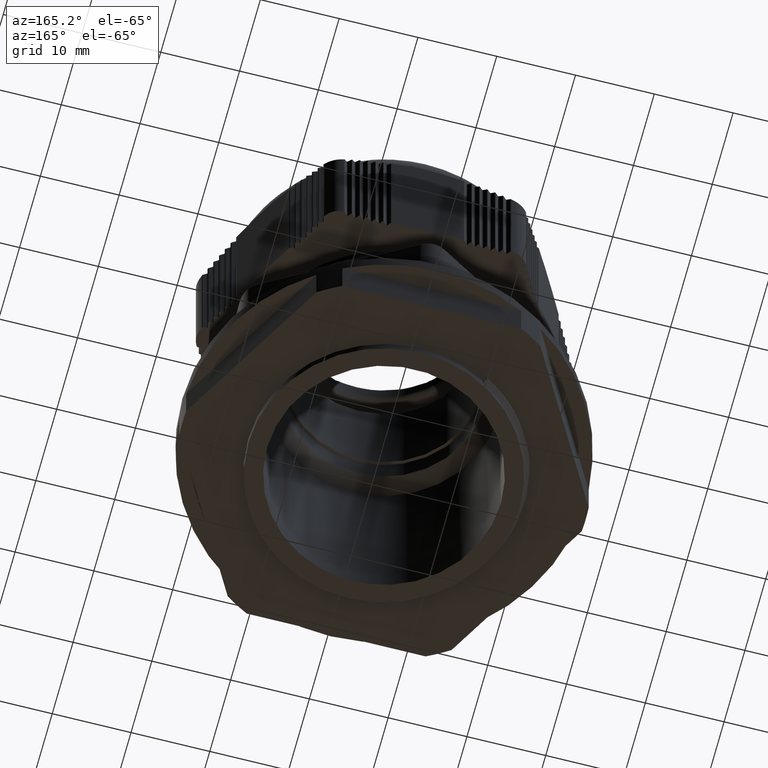
[diagram: clean part render]
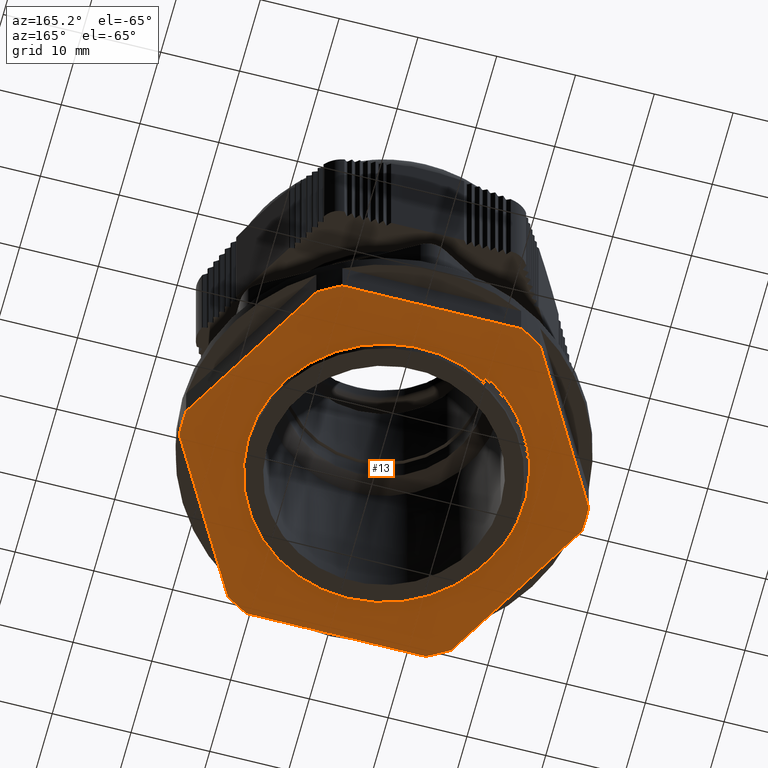
[diagram: same view with one face highlighted and labeled with its STEP entity id]
A machine part, auxiliary view. The second image highlights one B-rep face of the part: STEP entity #13.
In plain terms, the highlighted planar face has unit normal (0, 0, -1).
Its self-contained STEP definition (entity closure, byte-faithful):
#13 = ADVANCED_FACE ( 'NONE', ( #3961, #3947 ), #3967, .T. ) ;
#753 = EDGE_CURVE ( 'NONE', #21029, #20965, #22825, .T. ) ;
#1261 = EDGE_CURVE ( 'NONE', #1626, #1661, #10106, .T. ) ;
#1263 = EDGE_CURVE ( 'NONE', #1711, #1648, #23046, .T. ) ;
#1279 = EDGE_CURVE ( 'NONE', #1661, #1684, #16288, .T. ) ;
#1286 = EDGE_CURVE ( 'NONE', #1575, #1690, #10574, .T. ) ;
#1290 = EDGE_CURVE ( 'NONE', #1759, #1711, #10287, .T. ) ;
#1293 = EDGE_CURVE ( 'NONE', #1684, #1628, #10285, .T. ) ;
#1298 = EDGE_CURVE ( 'NONE', #1738, #1594, #10248, .T. ) ;
#1299 = EDGE_CURVE ( 'NONE', #1594, #1759, #10581, .T. ) ;
#1301 = EDGE_CURVE ( 'NONE', #1621, #1640, #10260, .T. ) ;
#1311 = EDGE_CURVE ( 'NONE', #1690, #1636, #10333, .T. ) ;
#1313 = EDGE_CURVE ( 'NONE', #1636, #1738, #10583, .T. ) ;
#1321 = EDGE_CURVE ( 'NONE', #1648, #1621, #10544, .T. ) ;
#1335 = EDGE_CURVE ( 'NONE', #1640, #1626, #10651, .T. ) ;
#1343 = EDGE_CURVE ( 'NONE', #1628, #1575, #10657, .T. ) ;
#1575 = VERTEX_POINT ( 'NONE', #11569 ) ;
#1594 = VERTEX_POINT ( 'NONE', #11598 ) ;
#1621 = VERTEX_POINT ( 'NONE', #11609 ) ;
#1626 = VERTEX_POINT ( 'NONE', #11645 ) ;
#1628 = VERTEX_POINT ( 'NONE', #11631 ) ;
#1636 = VERTEX_POINT ( 'NONE', #11665 ) ;
#1640 = VERTEX_POINT ( 'NONE', #11649 ) ;
#1648 = VERTEX_POINT ( 'NONE', #11706 ) ;
#1661 = VERTEX_POINT ( 'NONE', #11683 ) ;
#1684 = VERTEX_POINT ( 'NONE', #11773 ) ;
#1690 = VERTEX_POINT ( 'NONE', #11769 ) ;
#1711 = VERTEX_POINT ( 'NONE', #11792 ) ;
#1738 = VERTEX_POINT ( 'NONE', #11843 ) ;
#1759 = VERTEX_POINT ( 'NONE', #11900 ) ;
#1872 = EDGE_CURVE ( 'NONE', #22206, #22204, #5571, .T. ) ;
#1888 = EDGE_CURVE ( 'NONE', #21029, #22206, #12313, .T. ) ;
#1892 = EDGE_CURVE ( 'NONE', #20965, #22216, #11014, .T. ) ;
#1966 = EDGE_CURVE ( 'NONE', #22204, #22216, #5533, .T. ) ;
#3255 = EDGE_LOOP ( 'NONE', ( #23261, #23317, #23275, #23328, #23327 ) ) ;
#3260 = EDGE_LOOP ( 'NONE', ( #23342, #23338, #23358, #23299, #23297, #23373, #23325, #23347, #23366, #23370, #23329, #23321, #23305, #23359 ) ) ;
#3947 = FACE_OUTER_BOUND ( 'NONE', #3260, .T. ) ;
#3958 = DIRECTION ( 'NONE',  ( -1.000000000000000000, 0.0000000000000000000, -0.0000000000000000000 ) ) ;
#3961 = FACE_BOUND ( 'NONE', #3255, .T. ) ;
#3967 = PLANE ( 'NONE',  #22876 ) ;
#3968 = DIRECTION ( 'NONE',  ( 0.0000000000000000000, 0.0000000000000000000, -1.000000000000000000 ) ) ;
#3983 = CARTESIAN_POINT ( 'NONE',  ( -671.2819160884045000, 330.9994562443066000, 1.595886070432598100 ) ) ;
#5533 = B_SPLINE_CURVE_WITH_KNOTS ( 'NONE', 3,
 ( #12673, #12635, #12637, #12648, #12652, #12645, #12646, #12675, #12639, #12633, #12632, #12656, #12657, #12626, #12627, #12644, #12658, #12664, #12629, #12665, #12659, #12666, #12667, #12660, #12670, #12671, #12638, #12672, #12631, #12634, #12640, #12641, #12698, #12713, #12712, #12725, #12705, #12700, #12703, #12694, #12684, #12701, #12709, #12680 ),
 .UNSPECIFIED., .F., .F.,
 ( 4, 2, 2, 2, 2, 2, 2, 2, 2, 2, 2, 2, 2, 2, 2, 2, 2, 2, 2, 2, 2, 4 ),
 ( 0.0000000000000000000, 0.001216997913285871900, 0.002433995826571743800, 0.004867991653143654100, 0.007301987479715563500, 0.008518985393001546000, 0.009735983306287528500, 0.01216997913285975400, 0.01338697704614579000, 0.01460397495943182600, 0.01947196661257615700, 0.02068896452586205900, 0.02190596243914795900, 0.02433995826571957300, 0.02555695617900523000, 0.02677395409229088200, 0.02920794991886256600, 0.03164194574543425400, 0.03285894365872025400, 0.03407594157200626700, 0.03650993739857794100, 0.03894393322514962100 ),
 .UNSPECIFIED. ) ;
#5571 = B_SPLINE_CURVE_WITH_KNOTS ( 'NONE', 3,
 ( #12223, #12216, #12219, #12211, #12200, #12208, #12195, #12206, #12225, #12239, #12236, #12238, #12198, #12227 ),
 .UNSPECIFIED., .F., .F.,
 ( 4, 2, 2, 2, 2, 2, 4 ),
 ( 1.241267076623636600E-016, 0.003547606071713650700, 0.005321409107570595700, 0.007095212143427539900, 0.008869015179284484000, 0.01064281821514143100, 0.01419042428685561200 ),
 .UNSPECIFIED. ) ;
#8437 = DIRECTION ( 'NONE',  ( 0.0000000000000000000, 0.0000000000000000000, -1.000000000000000000 ) ) ;
#8452 = CARTESIAN_POINT ( 'NONE',  ( -671.2819160884045000, 330.9994562443066000, 1.595886070432598100 ) ) ;
#8480 = DIRECTION ( 'NONE',  ( -1.000000000000000000, 0.0000000000000000000, 0.0000000000000000000 ) ) ;
#10106 = LINE ( 'NONE', #10108, #23032 ) ;
#10108 = CARTESIAN_POINT ( 'NONE',  ( -671.2819160884045000, 353.9494562443066500, 1.595886070432598100 ) ) ;
#10151 = DIRECTION ( 'NONE',  ( -1.000000000000000000, 0.0000000000000000000, 0.0000000000000000000 ) ) ;
#10175 = DIRECTION ( 'NONE',  ( 0.0000000000000000000, 0.0000000000000000000, -1.000000000000000000 ) ) ;
#10184 = CARTESIAN_POINT ( 'NONE',  ( -671.2819160884045000, 330.9994562443066000, 1.595886070432598100 ) ) ;
#10185 = DIRECTION ( 'NONE',  ( 1.000000000000000000, -0.0000000000000000000, 0.0000000000000000000 ) ) ;
#10208 = DIRECTION ( 'NONE',  ( 0.0000000000000000000, 0.0000000000000000000, -1.000000000000000000 ) ) ;
#10209 = CARTESIAN_POINT ( 'NONE',  ( -671.2819160884045000, 330.9994562443066000, 1.595886070432598100 ) ) ;
#10210 = DIRECTION ( 'NONE',  ( 0.0000000000000000000, 0.0000000000000000000, -1.000000000000000000 ) ) ;
#10211 = DIRECTION ( 'NONE',  ( -1.000000000000000000, 0.0000000000000000000, 0.0000000000000000000 ) ) ;
#10232 = CARTESIAN_POINT ( 'NONE',  ( -671.2819160884045000, 330.9994562443066000, 1.595886070432598100 ) ) ;
#10233 = DIRECTION ( 'NONE',  ( -1.000000000000000000, 0.0000000000000000000, 0.0000000000000000000 ) ) ;
#10246 = DIRECTION ( 'NONE',  ( -0.4999999999999997800, 0.8660254037844387100, 0.0000000000000000000 ) ) ;
#10248 = LINE ( 'NONE', #10259, #10589 ) ;
#10251 = DIRECTION ( 'NONE',  ( -1.000000000000000000, 0.0000000000000000000, -0.0000000000000000000 ) ) ;
#10252 = CARTESIAN_POINT ( 'NONE',  ( -686.1999443206003700, 310.9382390912172100, 1.595886070432598100 ) ) ;
#10257 = CARTESIAN_POINT ( 'NONE',  ( -671.2819160884045000, 330.9994562443066000, 1.595886070432598100 ) ) ;
#10258 = DIRECTION ( 'NONE',  ( -1.000000000000000000, 0.0000000000000000000, 0.0000000000000000000 ) ) ;
#10259 = CARTESIAN_POINT ( 'NONE',  ( -671.2819160884045000, 308.0494562443065500, 1.595886070432598100 ) ) ;
#10260 = LINE ( 'NONE', #10330, #10573 ) ;
#10261 = DIRECTION ( 'NONE',  ( 0.5000000000000026600, -0.8660254037844371500, 0.0000000000000000000 ) ) ;
#10266 = DIRECTION ( 'NONE',  ( 0.0000000000000000000, 0.0000000000000000000, -1.000000000000000000 ) ) ;
#10272 = CARTESIAN_POINT ( 'NONE',  ( -656.3638878562090900, 351.0606733973963300, 1.595886070432598100 ) ) ;
#10285 = LINE ( 'NONE', #10272, #10567 ) ;
#10287 = LINE ( 'NONE', #10252, #10543 ) ;
#10298 = CARTESIAN_POINT ( 'NONE',  ( -671.2819160884045000, 330.9994562443066000, 1.595886070432598100 ) ) ;
#10300 = DIRECTION ( 'NONE',  ( 0.0000000000000000000, 0.0000000000000000000, -1.000000000000000000 ) ) ;
#10303 = DIRECTION ( 'NONE',  ( -1.000000000000000000, 0.0000000000000000000, 0.0000000000000000000 ) ) ;
#10326 = CARTESIAN_POINT ( 'NONE',  ( -646.4493782868952400, 328.1106733973955400, 1.595886070432598100 ) ) ;
#10329 = DIRECTION ( 'NONE',  ( 0.4999999999999982200, 0.8660254037844396000, 0.0000000000000000000 ) ) ;
#10330 = CARTESIAN_POINT ( 'NONE',  ( -696.1144538899138800, 333.8882390912176600, 1.595886070432598100 ) ) ;
#10332 = DIRECTION ( 'NONE',  ( -0.4999999999999941700, -0.8660254037844421500, 0.0000000000000000000 ) ) ;
#10333 = LINE ( 'NONE', #10326, #10576 ) ;
#10371 = CARTESIAN_POINT ( 'NONE',  ( -671.2819160884045000, 330.9994562443066000, 1.595886070432598100 ) ) ;
#10372 = DIRECTION ( 'NONE',  ( 0.0000000000000000000, 0.0000000000000000000, -1.000000000000000000 ) ) ;
#10373 = DIRECTION ( 'NONE',  ( -1.000000000000000000, 0.0000000000000000000, 0.0000000000000000000 ) ) ;
#10410 = CARTESIAN_POINT ( 'NONE',  ( -671.2819160884045000, 330.9994562443066000, 1.595886070432598100 ) ) ;
#10411 = DIRECTION ( 'NONE',  ( 0.0000000000000000000, 0.0000000000000000000, -1.000000000000000000 ) ) ;
#10438 = DIRECTION ( 'NONE',  ( 0.0000000000000000000, 0.0000000000000000000, -1.000000000000000000 ) ) ;
#10444 = DIRECTION ( 'NONE',  ( -1.000000000000000000, 0.0000000000000000000, 0.0000000000000000000 ) ) ;
#10462 = DIRECTION ( 'NONE',  ( -1.000000000000000000, 0.0000000000000000000, 0.0000000000000000000 ) ) ;
#10463 = CARTESIAN_POINT ( 'NONE',  ( -671.2819160884045000, 330.9994562443066000, 1.595886070432598100 ) ) ;
#10543 = VECTOR ( 'NONE', #10246, 1000.000000000000200 ) ;
#10544 = CIRCLE ( 'NONE', #10595, 25.60000000000006500 ) ;
#10547 = AXIS2_PLACEMENT_3D ( 'NONE', #10209, #10210, #10211 ) ;
#10567 = VECTOR ( 'NONE', #10261, 1000.000000000000100 ) ;
#10573 = VECTOR ( 'NONE', #10329, 1000.000000000000200 ) ;
#10574 = CIRCLE ( 'NONE', #10547, 25.60000000000006500 ) ;
#10576 = VECTOR ( 'NONE', #10332, 999.9999999999998900 ) ;
#10578 = AXIS2_PLACEMENT_3D ( 'NONE', #10298, #10300, #10303 ) ;
#10579 = AXIS2_PLACEMENT_3D ( 'NONE', #10257, #10266, #10258 ) ;
#10581 = CIRCLE ( 'NONE', #10579, 25.60000000000006500 ) ;
#10583 = CIRCLE ( 'NONE', #10578, 25.60000000000006500 ) ;
#10589 = VECTOR ( 'NONE', #10251, 1000.000000000000000 ) ;
#10595 = AXIS2_PLACEMENT_3D ( 'NONE', #10371, #10372, #10373 ) ;
#10632 = AXIS2_PLACEMENT_3D ( 'NONE', #10410, #10411, #10462 ) ;
#10651 = CIRCLE ( 'NONE', #10632, 25.60000000000006500 ) ;
#10657 = CIRCLE ( 'NONE', #10666, 25.60000000000006500 ) ;
#10666 = AXIS2_PLACEMENT_3D ( 'NONE', #10463, #10438, #10444 ) ;
#11014 = CIRCLE ( 'NONE', #11023, 17.23069359080486900 ) ;
#11023 = AXIS2_PLACEMENT_3D ( 'NONE', #12297, #12298, #12324 ) ;
#11025 = VECTOR ( 'NONE', #12318, 1000.000000000000100 ) ;
#11569 = CARTESIAN_POINT ( 'NONE',  ( -645.6819160884043600, 330.9994562443066000, 1.595886070432598100 ) ) ;
#11598 = CARTESIAN_POINT ( 'NONE',  ( -682.6246450369424100, 308.0494562443065500, 1.595886070432598100 ) ) ;
#11609 = CARTESIAN_POINT ( 'NONE',  ( -696.8285635795263000, 332.6513648266316600, 1.595886070432598100 ) ) ;
#11631 = CARTESIAN_POINT ( 'NONE',  ( -645.7352685972825800, 332.6513648266305300, 1.595886070432598100 ) ) ;
#11645 = CARTESIAN_POINT ( 'NONE',  ( -682.6246450369424100, 353.9494562443066500, 1.595886070432598100 ) ) ;
#11649 = CARTESIAN_POINT ( 'NONE',  ( -685.4858346309885100, 352.2975476619815800, 1.595886070432598100 ) ) ;
#11665 = CARTESIAN_POINT ( 'NONE',  ( -657.0779975458203800, 309.7013648266316200, 1.595886070432598100 ) ) ;
#11683 = CARTESIAN_POINT ( 'NONE',  ( -659.9391871398665900, 353.9494562443066500, 1.595886070432598100 ) ) ;
#11706 = CARTESIAN_POINT ( 'NONE',  ( -696.8819160884045200, 330.9994562443066000, 1.595886070432598100 ) ) ;
#11769 = CARTESIAN_POINT ( 'NONE',  ( -645.7352685972827000, 329.3475476619817600, 1.595886070432598100 ) ) ;
#11773 = CARTESIAN_POINT ( 'NONE',  ( -657.0779975458216300, 352.2975476619823200, 1.595886070432598100 ) ) ;
#11792 = CARTESIAN_POINT ( 'NONE',  ( -696.8285635795264200, 329.3475476619820500, 1.595886070432598100 ) ) ;
#11843 = CARTESIAN_POINT ( 'NONE',  ( -659.9391871398665900, 308.0494562443065500, 1.595886070432598100 ) ) ;
#11900 = CARTESIAN_POINT ( 'NONE',  ( -685.4858346309880500, 309.7013648266313300, 1.595886070432598100 ) ) ;
#12195 = CARTESIAN_POINT ( 'NONE',  ( -685.1780683553823800, 342.3537856106114500, 1.595886070432598100 ) ) ;
#12198 = CARTESIAN_POINT ( 'NONE',  ( -688.2850890605456000, 336.7046871818230900, 1.595886070432600300 ) ) ;
#12200 = CARTESIAN_POINT ( 'NONE',  ( -683.9933516761607300, 343.6679339469366100, 1.595886070432598600 ) ) ;
#12206 = CARTESIAN_POINT ( 'NONE',  ( -685.8929980145435400, 341.4124692244976100, 1.595886070432598100 ) ) ;
#12208 = CARTESIAN_POINT ( 'NONE',  ( -684.7976479841056500, 342.8053137984104500, 1.595886070432597700 ) ) ;
#12211 = CARTESIAN_POINT ( 'NONE',  ( -683.5680674178775000, 344.0802888321505300, 1.595886070432598300 ) ) ;
#12216 = CARTESIAN_POINT ( 'NONE',  ( -681.2705420946584800, 345.9351279122301400, 1.595886070432552800 ) ) ;
#12219 = CARTESIAN_POINT ( 'NONE',  ( -682.2370639351602200, 345.2465993072857500, 1.595886070432599000 ) ) ;
#12223 = CARTESIAN_POINT ( 'NONE',  ( -680.2429758879593500, 346.5204671067982100, 1.595886070432582800 ) ) ;
#12225 = CARTESIAN_POINT ( 'NONE',  ( -686.2254833707226000, 340.9254381953382400, 1.595886070432602800 ) ) ;
#12227 = CARTESIAN_POINT ( 'NONE',  ( -688.5687429171030100, 335.5563659217102100, 1.595886070432599400 ) ) ;
#12236 = CARTESIAN_POINT ( 'NONE',  ( -687.1236377723503200, 339.3979879328209700, 1.595886070435124500 ) ) ;
#12238 = CARTESIAN_POINT ( 'NONE',  ( -687.8861991426466600, 337.8077864110493400, 1.595886070435124100 ) ) ;
#12239 = CARTESIAN_POINT ( 'NONE',  ( -686.8406533539745200, 339.9187341688587500, 1.595886070432601900 ) ) ;
#12297 = CARTESIAN_POINT ( 'NONE',  ( -671.2819160884045000, 330.9994562443066000, 1.595886070432598100 ) ) ;
#12298 = DIRECTION ( 'NONE',  ( 0.0000000000000000000, 0.0000000000000000000, -1.000000000000000000 ) ) ;
#12313 = LINE ( 'NONE', #12327, #11025 ) ;
#12318 = DIRECTION ( 'NONE',  ( -0.5000000000009171600, 0.8660254037839091300, 0.0000000000000000000 ) ) ;
#12324 = DIRECTION ( 'NONE',  ( -1.000000000000000000, 0.0000000000000000000, 0.0000000000000000000 ) ) ;
#12327 = CARTESIAN_POINT ( 'NONE',  ( -679.8972628838064300, 345.9216746187695400, 1.595886070432598100 ) ) ;
#12626 = CARTESIAN_POINT ( 'NONE',  ( -688.0409000129317300, 325.2381986792763700, 1.595886070432599000 ) ) ;
#12627 = CARTESIAN_POINT ( 'NONE',  ( -687.7511194276145300, 324.4916175851475400, 1.595886070432595200 ) ) ;
#12629 = CARTESIAN_POINT ( 'NONE',  ( -686.4557705600860800, 321.9853289654099100, 1.595886070432599900 ) ) ;
#12631 = CARTESIAN_POINT ( 'NONE',  ( -678.3499170189810500, 315.0265716560337000, 1.595886070432598300 ) ) ;
#12632 = CARTESIAN_POINT ( 'NONE',  ( -688.6942094905210800, 327.5604384794183900, 1.595886070432597700 ) ) ;
#12633 = CARTESIAN_POINT ( 'NONE',  ( -688.7753165356283500, 327.9595783962731200, 1.595886070432599700 ) ) ;
#12634 = CARTESIAN_POINT ( 'NONE',  ( -677.5967977337452300, 314.7285885800168900, 1.595886070432598800 ) ) ;
#12635 = CARTESIAN_POINT ( 'NONE',  ( -688.6661488769704000, 335.1620355363069700, 1.595886070432599900 ) ) ;
#12637 = CARTESIAN_POINT ( 'NONE',  ( -688.7498758451458800, 334.7650499681763000, 1.595886070432598600 ) ) ;
#12638 = CARTESIAN_POINT ( 'NONE',  ( -679.8067894639730200, 315.7074320145803800, 1.595886070432595900 ) ) ;
#12639 = CARTESIAN_POINT ( 'NONE',  ( -688.9760068802361300, 329.1557803004906200, 1.595886070432598800 ) ) ;
#12640 = CARTESIAN_POINT ( 'NONE',  ( -677.2136786361538700, 314.5922140962561600, 1.595886070432598100 ) ) ;
#12641 = CARTESIAN_POINT ( 'NONE',  ( -676.0607695271196500, 314.2261052520984200, 1.595886070432598300 ) ) ;
#12644 = CARTESIAN_POINT ( 'NONE',  ( -687.2402869489219500, 323.4008298701778000, 1.595886070432594600 ) ) ;
#12645 = CARTESIAN_POINT ( 'NONE',  ( -689.0737236937832200, 332.3576451058506200, 1.595886070432598100 ) ) ;
#12646 = CARTESIAN_POINT ( 'NONE',  ( -689.1031848311961300, 331.5557014804794600, 1.595886070432598800 ) ) ;
#12648 = CARTESIAN_POINT ( 'NONE',  ( -688.8900621556757600, 333.9657860054610400, 1.595886070432598600 ) ) ;
#12652 = CARTESIAN_POINT ( 'NONE',  ( -688.9465336647836000, 333.5628359742531200, 1.595886070432598800 ) ) ;
#12656 = CARTESIAN_POINT ( 'NONE',  ( -688.5064291209329200, 326.7749064346639900, 1.595886070432597700 ) ) ;
#12657 = CARTESIAN_POINT ( 'NONE',  ( -688.3995780676079900, 326.3870897954487300, 1.595886070432598600 ) ) ;
#12658 = CARTESIAN_POINT ( 'NONE',  ( -687.0572731353524900, 323.0420975999760500, 1.595886070432597400 ) ) ;
#12659 = CARTESIAN_POINT ( 'NONE',  ( -684.3122945260382700, 319.0794095784277700, 1.595886070432598600 ) ) ;
#12660 = CARTESIAN_POINT ( 'NONE',  ( -681.8363874351869100, 316.9964959674080100, 1.595886070432597700 ) ) ;
#12664 = CARTESIAN_POINT ( 'NONE',  ( -686.6652072959962000, 322.3345763044102300, 1.595886070432597400 ) ) ;
#12665 = CARTESIAN_POINT ( 'NONE',  ( -685.3583844362724400, 320.2915301481110100, 1.595886070432599700 ) ) ;
#12666 = CARTESIAN_POINT ( 'NONE',  ( -682.7930542851829600, 317.7440980274274100, 1.595886070432598800 ) ) ;
#12667 = CARTESIAN_POINT ( 'NONE',  ( -682.4780861248777900, 317.4860874177076700, 1.595886070432597900 ) ) ;
#12670 = CARTESIAN_POINT ( 'NONE',  ( -681.5084862119284700, 316.7638272547886200, 1.595886070432597900 ) ) ;
#12671 = CARTESIAN_POINT ( 'NONE',  ( -680.5040203083785900, 316.1015256277585800, 1.595886070432597900 ) ) ;
#12672 = CARTESIAN_POINT ( 'NONE',  ( -678.7193519462705400, 315.1878154631560300, 1.595886070432595700 ) ) ;
#12673 = CARTESIAN_POINT ( 'NONE',  ( -688.5687429171030100, 335.5563659217102100, 1.595886070432599400 ) ) ;
#12675 = CARTESIAN_POINT ( 'NONE',  ( -689.0543257745030100, 329.9547690956170500, 1.595886070432598800 ) ) ;
#12680 = CARTESIAN_POINT ( 'NONE',  ( -665.0068787505465500, 314.9520044830862300, 1.595886070432597900 ) ) ;
#12684 = CARTESIAN_POINT ( 'NONE',  ( -668.0922935341108100, 313.9908676817855200, 1.595886070432597400 ) ) ;
#12694 = CARTESIAN_POINT ( 'NONE',  ( -668.8806098884882700, 313.8478864908403800, 1.595886070432598800 ) ) ;
#12698 = CARTESIAN_POINT ( 'NONE',  ( -675.2817517752527000, 314.0366843371696200, 1.595886070432598600 ) ) ;
#12700 = CARTESIAN_POINT ( 'NONE',  ( -670.4761473369660500, 313.6853834618896700, 1.595886070432598300 ) ) ;
#12701 = CARTESIAN_POINT ( 'NONE',  ( -666.5326541975752000, 314.3878070339656600, 1.595886070432597000 ) ) ;
#12703 = CARTESIAN_POINT ( 'NONE',  ( -670.0756825235610000, 313.7156879189707900, 1.595886070432598800 ) ) ;
#12705 = CARTESIAN_POINT ( 'NONE',  ( -671.2813596481072400, 313.6527430595485800, 1.595886070432599000 ) ) ;
#12709 = CARTESIAN_POINT ( 'NONE',  ( -665.7584740229946200, 314.6433189281016200, 1.595886070432597700 ) ) ;
#12712 = CARTESIAN_POINT ( 'NONE',  ( -672.9031465584029100, 313.6865308055574200, 1.595886070432599400 ) ) ;
#12713 = CARTESIAN_POINT ( 'NONE',  ( -673.7029187402973800, 313.7670102345203400, 1.595886070432598800 ) ) ;
#12725 = CARTESIAN_POINT ( 'NONE',  ( -671.6873632634092200, 313.6504530553984900, 1.595886070432598600 ) ) ;
#16288 = CIRCLE ( 'NONE', #23191, 25.60000000000006500 ) ;
#18636 = CARTESIAN_POINT ( 'NONE',  ( -654.0512224975996100, 330.9994562443066000, 1.595886070432598100 ) ) ;
#20171 = CARTESIAN_POINT ( 'NONE',  ( -679.8972628838063200, 345.9216746187696600, 1.595886070432598100 ) ) ;
#20375 = CARTESIAN_POINT ( 'NONE',  ( -665.0068787505465500, 314.9520044830862300, 1.595886070432597900 ) ) ;
#20412 = CARTESIAN_POINT ( 'NONE',  ( -680.2429758879593500, 346.5204671067982100, 1.595886070432582800 ) ) ;
#20418 = CARTESIAN_POINT ( 'NONE',  ( -688.5687429171030100, 335.5563659217102100, 1.595886070432599400 ) ) ;
#20965 = VERTEX_POINT ( 'NONE', #18636 ) ;
#21029 = VERTEX_POINT ( 'NONE', #20171 ) ;
#22204 = VERTEX_POINT ( 'NONE', #20418 ) ;
#22206 = VERTEX_POINT ( 'NONE', #20412 ) ;
#22216 = VERTEX_POINT ( 'NONE', #20375 ) ;
#22795 = AXIS2_PLACEMENT_3D ( 'NONE', #8452, #8437, #8480 ) ;
#22825 = CIRCLE ( 'NONE', #22795, 17.23069359080486900 ) ;
#22876 = AXIS2_PLACEMENT_3D ( 'NONE', #3983, #3968, #3958 ) ;
#23032 = VECTOR ( 'NONE', #10185, 1000.000000000000000 ) ;
#23040 = AXIS2_PLACEMENT_3D ( 'NONE', #10184, #10175, #10151 ) ;
#23046 = CIRCLE ( 'NONE', #23040, 25.60000000000006500 ) ;
#23191 = AXIS2_PLACEMENT_3D ( 'NONE', #10232, #10208, #10233 ) ;
#23261 = ORIENTED_EDGE ( 'NONE', *, *, #753, .F. ) ;
#23275 = ORIENTED_EDGE ( 'NONE', *, *, #1872, .T. ) ;
#23297 = ORIENTED_EDGE ( 'NONE', *, *, #1301, .T. ) ;
#23299 = ORIENTED_EDGE ( 'NONE', *, *, #1321, .T. ) ;
#23305 = ORIENTED_EDGE ( 'NONE', *, *, #1313, .T. ) ;
#23317 = ORIENTED_EDGE ( 'NONE', *, *, #1888, .T. ) ;
#23321 = ORIENTED_EDGE ( 'NONE', *, *, #1311, .T. ) ;
#23325 = ORIENTED_EDGE ( 'NONE', *, *, #1261, .T. ) ;
#23327 = ORIENTED_EDGE ( 'NONE', *, *, #1892, .F. ) ;
#23328 = ORIENTED_EDGE ( 'NONE', *, *, #1966, .T. ) ;
#23329 = ORIENTED_EDGE ( 'NONE', *, *, #1286, .T. ) ;
#23338 = ORIENTED_EDGE ( 'NONE', *, *, #1290, .T. ) ;
#23342 = ORIENTED_EDGE ( 'NONE', *, *, #1299, .T. ) ;
#23347 = ORIENTED_EDGE ( 'NONE', *, *, #1279, .T. ) ;
#23358 = ORIENTED_EDGE ( 'NONE', *, *, #1263, .T. ) ;
#23359 = ORIENTED_EDGE ( 'NONE', *, *, #1298, .T. ) ;
#23366 = ORIENTED_EDGE ( 'NONE', *, *, #1293, .T. ) ;
#23370 = ORIENTED_EDGE ( 'NONE', *, *, #1343, .T. ) ;
#23373 = ORIENTED_EDGE ( 'NONE', *, *, #1335, .T. ) ;